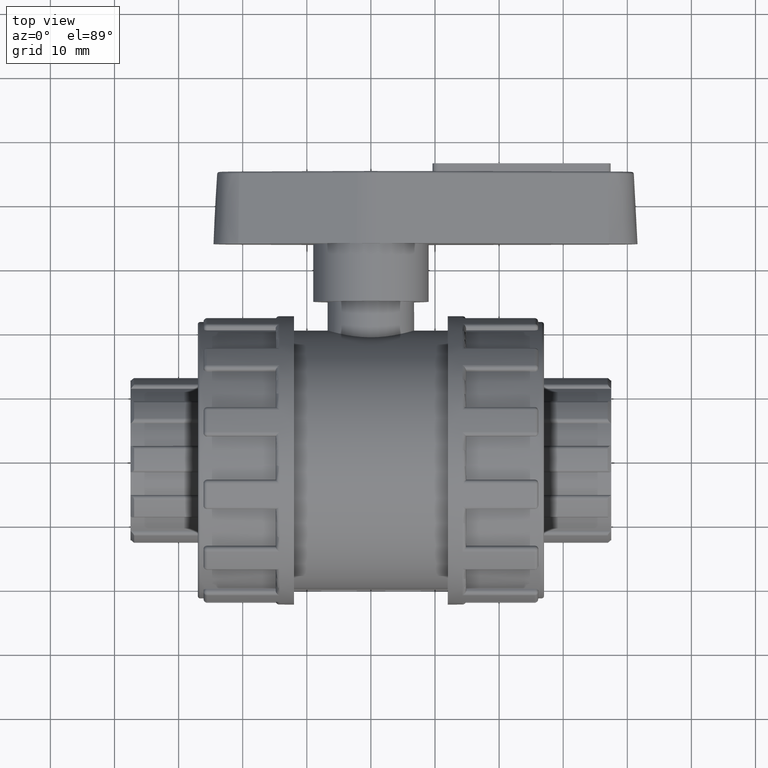
[diagram: clean part render]
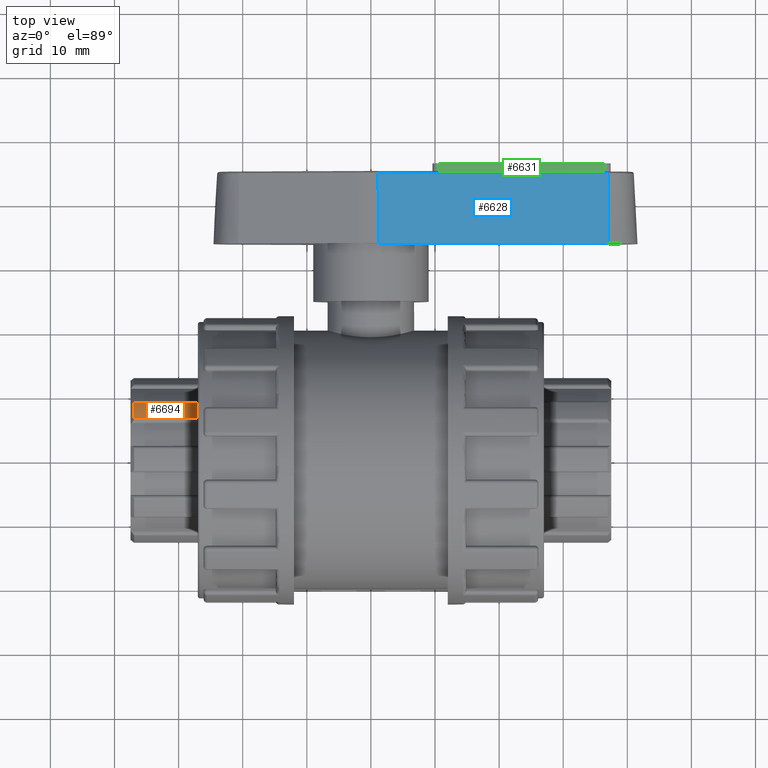
[diagram: same view with three faces highlighted in distinct colors, each labeled with its STEP entity id]
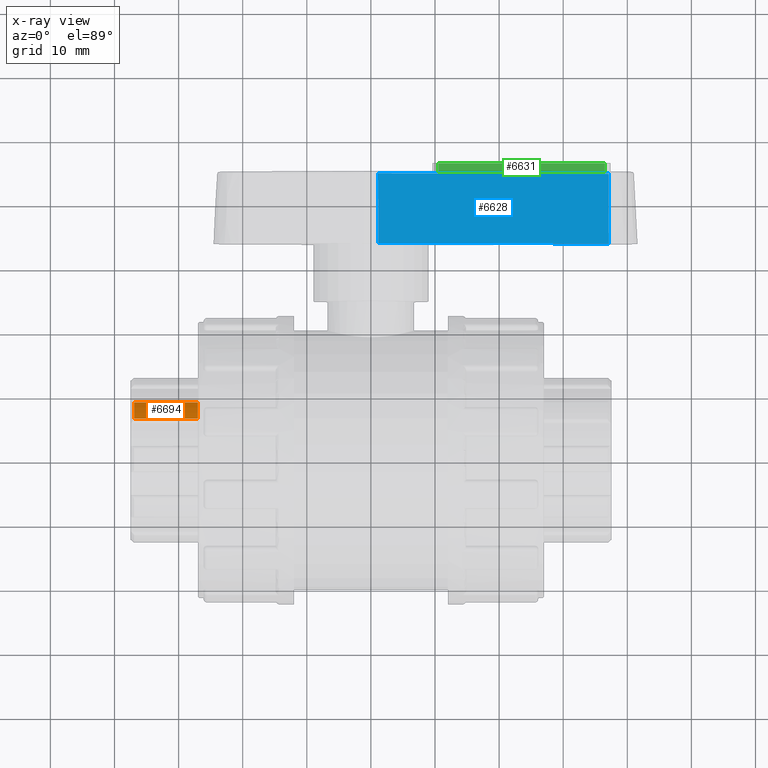
[diagram: x-ray of the same camera — body ghosted, the three highlighted faces saturated]
A machine part, top view with three faces highlighted in distinct colors.
The next image is the same camera in x-ray (body ghosted, the three faces saturated) — at least one of them is partly hidden behind the body in this view.
Their STEP definitions:

[orange] entity #6694 — the highlighted cylindrical surface (partial cylindrical patch) has radius 13.0417 mm, axis along (1, 0, 0).
#497=FACE_OUTER_BOUND('',#935,.T.);
#935=EDGE_LOOP('',(#4638,#4639,#4640,#4641));
#1400=LINE('',#11083,#1796);
#1402=LINE('',#11118,#1798);
#1796=VECTOR('',#8432,9.94106999999999);
#1798=VECTOR('',#8444,9.94106999999999);
#2199=CIRCLE('',#7223,13.0417);
#2201=CIRCLE('',#7226,13.0417);
#2780=VERTEX_POINT('',#11080);
#2781=VERTEX_POINT('',#11082);
#2783=VERTEX_POINT('',#11099);
#2785=VERTEX_POINT('',#11116);
#3478=EDGE_CURVE('',#2780,#2781,#1400,.T.);
#3481=EDGE_CURVE('',#2781,#2783,#2199,.T.);
#3484=EDGE_CURVE('',#2785,#2780,#2201,.T.);
#3485=EDGE_CURVE('',#2783,#2785,#1402,.T.);
#4638=ORIENTED_EDGE('',*,*,#3478,.F.);
#4639=ORIENTED_EDGE('',*,*,#3484,.F.);
#4640=ORIENTED_EDGE('',*,*,#3485,.F.);
#4641=ORIENTED_EDGE('',*,*,#3481,.F.);
#6475=CYLINDRICAL_SURFACE('',#7225,13.0417);
#6694=ADVANCED_FACE('',(#497),#6475,.T.);
#7223=AXIS2_PLACEMENT_3D('',#11100,#8436,#8437);
#7225=AXIS2_PLACEMENT_3D('',#11115,#8440,#8441);
#7226=AXIS2_PLACEMENT_3D('',#11117,#8442,#8443);
#8432=DIRECTION('',(-1.,0.,0.));
#8436=DIRECTION('center_axis',(-1.,0.,0.));
#8437=DIRECTION('ref_axis',(0.,-1.,0.));
#8440=DIRECTION('center_axis',(1.,0.,0.));
#8441=DIRECTION('ref_axis',(0.,1.,0.));
#8442=DIRECTION('center_axis',(1.,0.,0.));
#8443=DIRECTION('ref_axis',(0.,0.,-1.));
#8444=DIRECTION('',(1.,0.,0.));
#11080=CARTESIAN_POINT('',(-27.,6.35245863508018,11.3900047488838));
#11082=CARTESIAN_POINT('',(-36.94107,6.35245863508018,11.3900047488838));
#11083=CARTESIAN_POINT('',(-37.5,6.35245863508018,11.3900047488838));
#11099=CARTESIAN_POINT('',(-36.94107,8.86952056275501,9.56125221280487));
#11100=CARTESIAN_POINT('Origin',(-36.94107,0.,0.));
#11115=CARTESIAN_POINT('Origin',(-32.25,0.,0.));
#11116=CARTESIAN_POINT('',(-27.,8.86952056275501,9.56125221280487));
#11117=CARTESIAN_POINT('Origin',(-27.,0.,0.));
#11118=CARTESIAN_POINT('',(-37.5,8.86952056275501,9.56125221280487));

[blue] entity #6628 — the highlighted planar face has unit normal (0.1231, 0.0523, 0.991).
#227=PLANE('',#7082);
#431=FACE_OUTER_BOUND('',#865,.T.);
#865=EDGE_LOOP('',(#4365,#4366,#4367,#4368));
#1314=LINE('',#10316,#1710);
#1326=LINE('',#10371,#1722);
#1327=LINE('',#10375,#1723);
#1328=LINE('',#10376,#1724);
#1710=VECTOR('',#8012,36.2215405525496);
#1722=VECTOR('',#8076,10.9118357156273);
#1723=VECTOR('',#8081,10.9118357156273);
#1724=VECTOR('',#8082,36.2215405525497);
#2626=VERTEX_POINT('',#10313);
#2627=VERTEX_POINT('',#10315);
#2644=VERTEX_POINT('',#10370);
#2645=VERTEX_POINT('',#10374);
#3270=EDGE_CURVE('',#2626,#2627,#1314,.T.);
#3298=EDGE_CURVE('',#2627,#2644,#1326,.T.);
#3300=EDGE_CURVE('',#2626,#2645,#1327,.T.);
#3301=EDGE_CURVE('',#2645,#2644,#1328,.T.);
#4365=ORIENTED_EDGE('',*,*,#3270,.F.);
#4366=ORIENTED_EDGE('',*,*,#3300,.T.);
#4367=ORIENTED_EDGE('',*,*,#3301,.T.);
#4368=ORIENTED_EDGE('',*,*,#3298,.F.);
#6628=ADVANCED_FACE('',(#431),#227,.T.);
#7082=AXIS2_PLACEMENT_3D('',#10373,#8079,#8080);
#8012=DIRECTION('',(0.992370974042457,3.03825984231959E-16,-0.123287671232877));
#8076=DIRECTION('',(0.00645237816693862,-0.998629534754574,0.0519366838742535));
#8079=DIRECTION('center_axis',(0.123118709764263,0.0523359562429439,0.991010964111962));
#8080=DIRECTION('ref_axis',(-0.992370974042457,0.,0.123287671232877));
#8081=DIRECTION('',(0.00645237816693859,-0.998629534754574,0.0519366838742536));
#8082=DIRECTION('',(0.992370974042457,3.03825984231959E-16,-0.123287671232877));
#10313=CARTESIAN_POINT('',(1.11187062251395,44.6468814240152,8.94970374279507));
#10315=CARTESIAN_POINT('',(37.057076101966,44.6468814240152,4.48403435960401));
#10316=CARTESIAN_POINT('',(1.11187062251395,44.6468814240152,8.94970374279507));
#10370=CARTESIAN_POINT('',(37.1274833924987,33.75,5.05075892165434));
#10371=CARTESIAN_POINT('',(37.0547945205479,45.,4.46566938319106));
#10373=CARTESIAN_POINT('Origin',(1.10958904109588,45.,8.93133876638212));
#10374=CARTESIAN_POINT('',(1.18227791304668,33.75,9.51642830484539));
#10375=CARTESIAN_POINT('',(1.10958904109589,45.,8.93133876638212));
#10376=CARTESIAN_POINT('',(1.18227791304668,33.75,9.51642830484539));

[green] entity #6631 — the highlighted planar face has unit normal (-0, 0, 1).
#229=PLANE('',#7088);
#434=FACE_OUTER_BOUND('',#869,.T.);
#869=EDGE_LOOP('',(#4385,#4386,#4387,#4388));
#1329=LINE('',#10382,#1725);
#1332=LINE('',#10391,#1728);
#1333=LINE('',#10394,#1729);
#1334=LINE('',#10395,#1730);
#1725=VECTOR('',#8087,26.);
#1728=VECTOR('',#8096,1.35);
#1729=VECTOR('',#8099,26.);
#1730=VECTOR('',#8100,1.35);
#2647=VERTEX_POINT('',#10379);
#2648=VERTEX_POINT('',#10381);
#2651=VERTEX_POINT('',#10389);
#2652=VERTEX_POINT('',#10393);
#3303=EDGE_CURVE('',#2647,#2648,#1329,.T.);
#3308=EDGE_CURVE('',#2647,#2651,#1332,.T.);
#3309=EDGE_CURVE('',#2652,#2651,#1333,.T.);
#3310=EDGE_CURVE('',#2648,#2652,#1334,.T.);
#4385=ORIENTED_EDGE('',*,*,#3303,.F.);
#4386=ORIENTED_EDGE('',*,*,#3308,.T.);
#4387=ORIENTED_EDGE('',*,*,#3309,.F.);
#4388=ORIENTED_EDGE('',*,*,#3310,.F.);
#6631=ADVANCED_FACE('',(#434),#229,.T.);
#7088=AXIS2_PLACEMENT_3D('',#10392,#8097,#8098);
#8087=DIRECTION('',(-1.,-3.06161699786838E-16,-4.2700885562506E-17));
#8096=DIRECTION('',(0.,1.,0.));
#8097=DIRECTION('center_axis',(-4.2700885562506E-17,0.,1.));
#8098=DIRECTION('ref_axis',(1.,0.,4.44089209850063E-17));
#8099=DIRECTION('',(1.,3.06161699786838E-16,4.2700885562506E-17));
#8100=DIRECTION('',(0.,1.,0.));
#10379=CARTESIAN_POINT('',(36.5,45.,0.900000000000001));
#10381=CARTESIAN_POINT('',(10.5,45.,0.9));
#10382=CARTESIAN_POINT('',(5.24999999999998,45.,0.9));
#10389=CARTESIAN_POINT('',(36.5,46.35,0.900000000000001));
#10391=CARTESIAN_POINT('',(36.5,45.,0.900000000000001));
#10392=CARTESIAN_POINT('Origin',(10.5,45.,0.9));
#10393=CARTESIAN_POINT('',(10.5,46.35,0.9));
#10394=CARTESIAN_POINT('',(10.5,46.35,0.9));
#10395=CARTESIAN_POINT('',(10.5,45.,0.9));